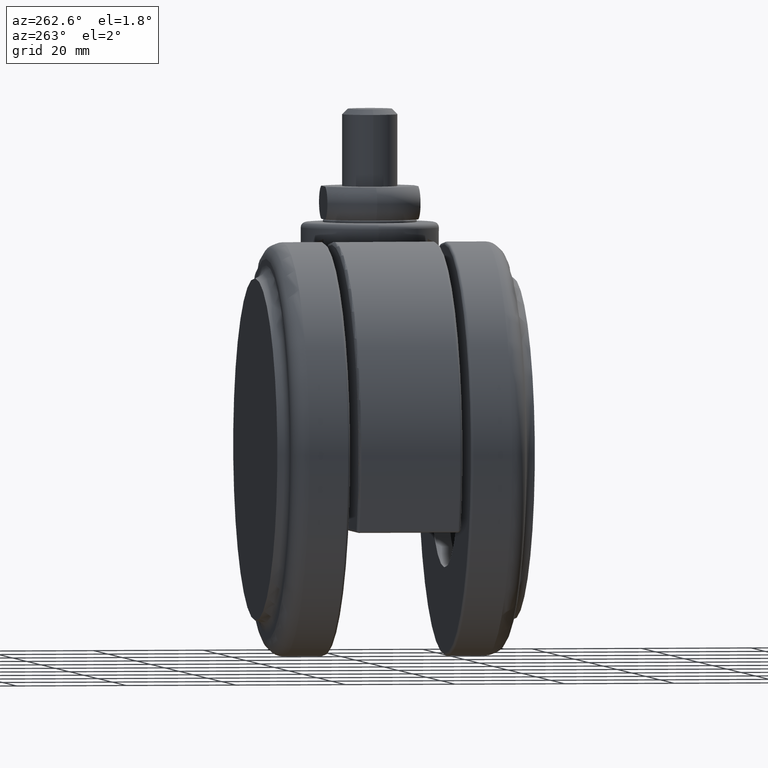
[diagram: clean part render]
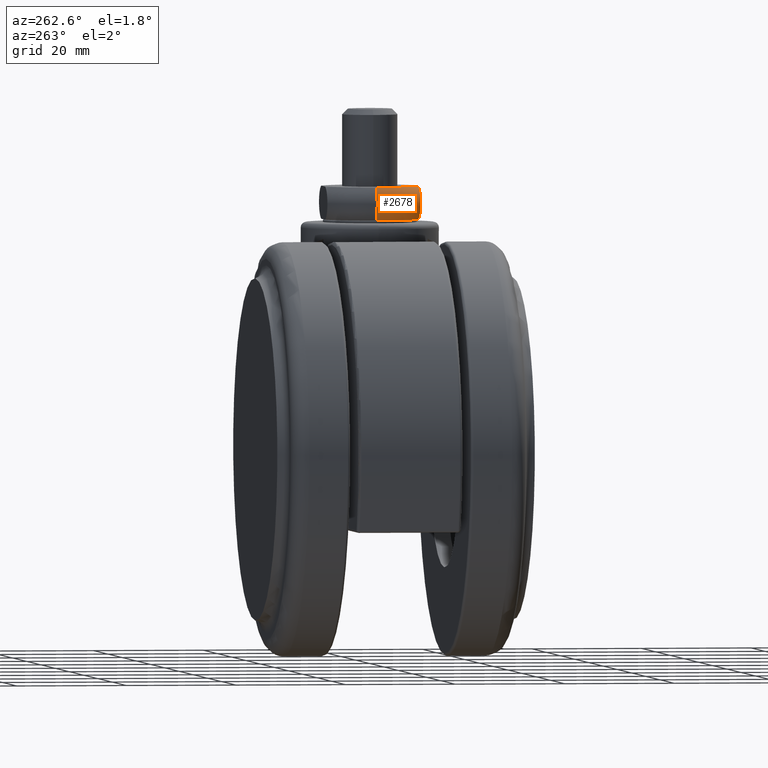
[diagram: same view with one face highlighted and labeled with its STEP entity id]
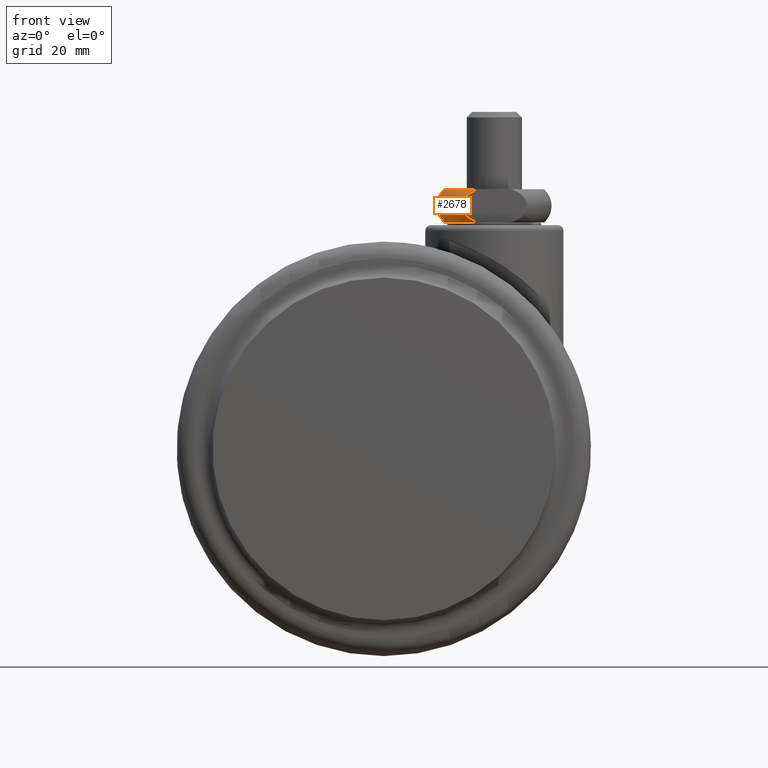
[diagram: same view with one face highlighted and labeled with its STEP entity id]
A machine part, auxiliary view. The second image highlights one B-rep face of the part: STEP entity #2678.
A second angle (front view) of the same face is appended — the face is thin or edge-on in the first view.
In plain terms, the highlighted toroidal blend (fillet) surface has major radius 6.3542 mm and minor (blend) radius 4 mm.
Its self-contained STEP definition (entity closure, byte-faithful):
#184 = CARTESIAN_POINT ( 'NONE',  ( 0.0000000000000000000, 0.0000000000000000000, 0.4999999999998860400 ) ) ;
#206 = CARTESIAN_POINT ( 'NONE',  ( -5.219051959545210700, -8.499999999999913000, 5.210018652220026200 ) ) ;
#220 = CARTESIAN_POINT ( 'NONE',  ( -5.730239101625271800, -8.499999999999913000, 4.420059913849627300 ) ) ;
#266 = AXIS2_PLACEMENT_3D ( 'NONE', #184, #2446, #622 ) ;
#268 = CARTESIAN_POINT ( 'NONE',  ( -5.088812386480751300, -8.499999999999911200, 5.345149879930501900 ) ) ;
#330 = CARTESIAN_POINT ( 'NONE',  ( -5.888808739066426800, -8.499999999999911200, 3.121193553457322100 ) ) ;
#362 = CARTESIAN_POINT ( 'NONE',  ( -2.958037795423865000, -8.499999999999911200, 0.4999999999998860400 ) ) ;
#392 = CARTESIAN_POINT ( 'NONE',  ( -4.663720722923060600, -8.499999999999911200, 1.277627257136406200 ) ) ;
#413 = CARTESIAN_POINT ( 'NONE',  ( -8.999999655531835800, 0.0000000000000000000, 0.4999999999998857600 ) ) ;
#446 = DIRECTION ( 'NONE',  ( -1.000000000000000000, 0.0000000000000000000, 0.0000000000000000000 ) ) ;
#576 = CARTESIAN_POINT ( 'NONE',  ( -3.317427895695561200, -8.499999999999911200, 6.395827013742356300 ) ) ;
#622 = DIRECTION ( 'NONE',  ( -1.000000000000000000, 0.0000000000000000000, 0.0000000000000000000 ) ) ;
#642 = CARTESIAN_POINT ( 'NONE',  ( -4.341128565673017200, -8.499999999999911200, 1.070576970003465700 ) ) ;
#652 = CARTESIAN_POINT ( 'NONE',  ( -5.225012345620208400, -8.499999999999911200, 1.775147982010003800 ) ) ;
#754 = DIRECTION ( 'NONE',  ( 0.0000000000000000000, 0.0000000000000000000, -1.000000000000000000 ) ) ;
#960 = CARTESIAN_POINT ( 'NONE',  ( -8.999999305340566000, 0.0000000000000000000, 6.500000005047589900 ) ) ;
#1017 = AXIS2_PLACEMENT_3D ( 'NONE', #1086, #3214, #1407 ) ;
#1058 = CARTESIAN_POINT ( 'NONE',  ( 0.0000000000000000000, 0.0000000000000000000, 3.499999999999885000 ) ) ;
#1086 = CARTESIAN_POINT ( 'NONE',  ( -6.354247999999529400, 0.0000000000000000000, 3.499999999999885000 ) ) ;
#1168 = EDGE_CURVE ( 'NONE', #3019, #2952, #1293, .T. ) ;
#1211 = EDGE_CURVE ( 'NONE', #3019, #1953, #1611, .T. ) ;
#1249 = CARTESIAN_POINT ( 'NONE',  ( -5.728918009566011300, -8.499999999999909400, 2.576691233816597000 ) ) ;
#1260 = CARTESIAN_POINT ( 'NONE',  ( -5.912733285012261100, -8.499999999999909400, 3.310655944712288500 ) ) ;
#1286 = ORIENTED_EDGE ( 'NONE', *, *, #3602, .T. ) ;
#1287 = CARTESIAN_POINT ( 'NONE',  ( -3.670986067500816600, -8.499999999999911200, 0.7358438945563693400 ) ) ;
#1293 = CIRCLE ( 'NONE', #2683, 8.999999305340569600 ) ;
#1338 = CIRCLE ( 'NONE', #266, 8.999999999999550600 ) ;
#1407 = DIRECTION ( 'NONE',  ( 0.0000000000000000000, 0.0000000000000000000, -1.000000000000000000 ) ) ;
#1458 = CARTESIAN_POINT ( 'NONE',  ( -2.958037778009625200, -8.499999999999911200, 6.499999999999619900 ) ) ;
#1496 = CARTESIAN_POINT ( 'NONE',  ( -5.559260838959795100, -8.499999999999911200, 4.754873436906065900 ) ) ;
#1543 = DIRECTION ( 'NONE',  ( -1.000000000000000000, 0.0000000000000000000, 0.0000000000000000000 ) ) ;
#1568 = CARTESIAN_POINT ( 'NONE',  ( -5.470622552425081300, -8.499999999999909400, 2.072899325473769300 ) ) ;
#1583 = CARTESIAN_POINT ( 'NONE',  ( -2.958037795423865000, -8.499999999999911200, 0.4999999999998860400 ) ) ;
#1594 = CARTESIAN_POINT ( 'NONE',  ( -3.320124984375679900, -8.499999999999913000, 0.6049547665858484600 ) ) ;
#1611 = B_SPLINE_CURVE_WITH_KNOTS ( 'NONE', 3,
 ( #1458, #576, #3574, #2682, #2085, #268, #206, #2795, #1496, #220, #2041, #3266, #2404, #1260, #330, #1917, #1249, #1568, #652, #392, #642, #1287, #1594, #1583 ),
 .UNSPECIFIED., .F., .F.,
 ( 4, 2, 2, 2, 2, 2, 2, 2, 2, 2, 2, 4 ),
 ( 0.01792377333432737900, 0.01904187672394381700, 0.02015998011356025200, 0.02071903180836847200, 0.02127808350317669100, 0.02183713519798491400, 0.02239618689279313300, 0.02295523858760135200, 0.02351429028240957200, 0.02463239367202601000, 0.02575049706164244900, 0.02686860045125888700 ),
 .UNSPECIFIED. ) ;
#1789 = EDGE_LOOP ( 'NONE', ( #2104, #1286, #3614, #2809 ) ) ;
#1813 = CIRCLE ( 'NONE', #1017, 4.000000000000000000 ) ;
#1917 = CARTESIAN_POINT ( 'NONE',  ( -5.797492339573863300, -8.499999999999911200, 2.756200493749179100 ) ) ;
#1946 = AXIS2_PLACEMENT_3D ( 'NONE', #1058, #754, #446 ) ;
#1953 = VERTEX_POINT ( 'NONE', #362 ) ;
#1981 = EDGE_CURVE ( 'NONE', #1953, #2250, #1338, .T. ) ;
#2025 = DIRECTION ( 'NONE',  ( 0.0000000000000000000, 0.0000000000000000000, -1.000000000000000000 ) ) ;
#2041 = CARTESIAN_POINT ( 'NONE',  ( -5.798644968921637500, -8.499999999999911200, 4.240375829911742200 ) ) ;
#2085 = CARTESIAN_POINT ( 'NONE',  ( -4.669105715610133000, -8.499999999999913000, 5.718434676629529500 ) ) ;
#2104 = ORIENTED_EDGE ( 'NONE', *, *, #1168, .T. ) ;
#2250 = VERTEX_POINT ( 'NONE', #413 ) ;
#2404 = CARTESIAN_POINT ( 'NONE',  ( -5.912739499086114000, -8.499999999999911200, 3.689269076108742800 ) ) ;
#2446 = DIRECTION ( 'NONE',  ( 0.0000000000000000000, 0.0000000000000000000, -1.000000000000000000 ) ) ;
#2678 = ADVANCED_FACE ( 'NONE', ( #3082 ), #2894, .T. ) ;
#2682 = CARTESIAN_POINT ( 'NONE',  ( -4.347601271038438000, -8.499999999999909400, 5.925734665817342000 ) ) ;
#2683 = AXIS2_PLACEMENT_3D ( 'NONE', #2742, #2025, #1543 ) ;
#2742 = CARTESIAN_POINT ( 'NONE',  ( 0.0000000000000000000, 0.0000000000000000000, 6.500000005047589900 ) ) ;
#2795 = CARTESIAN_POINT ( 'NONE',  ( -5.455660555219791900, -8.499999999999913000, 4.913315667224887700 ) ) ;
#2809 = ORIENTED_EDGE ( 'NONE', *, *, #1211, .F. ) ;
#2894 = TOROIDAL_SURFACE ( 'NONE', #1946, 6.354247999999529400, 4.000000000000000000 ) ;
#2952 = VERTEX_POINT ( 'NONE', #960 ) ;
#3019 = VERTEX_POINT ( 'NONE', #3724 ) ;
#3082 = FACE_OUTER_BOUND ( 'NONE', #1789, .T. ) ;
#3214 = DIRECTION ( 'NONE',  ( -0.0000000000000000000, -1.000000000000000000, -0.0000000000000000000 ) ) ;
#3266 = CARTESIAN_POINT ( 'NONE',  ( -5.889424226459081700, -8.499999999999911200, 3.875139731532579700 ) ) ;
#3574 = CARTESIAN_POINT ( 'NONE',  ( -3.674513870808910900, -8.499999999999911200, 6.262842551162494300 ) ) ;
#3602 = EDGE_CURVE ( 'NONE', #2952, #2250, #1813, .T. ) ;
#3614 = ORIENTED_EDGE ( 'NONE', *, *, #1981, .F. ) ;
#3724 = CARTESIAN_POINT ( 'NONE',  ( -2.958037778009625200, -8.499999999999911200, 6.499999999999619900 ) ) ;